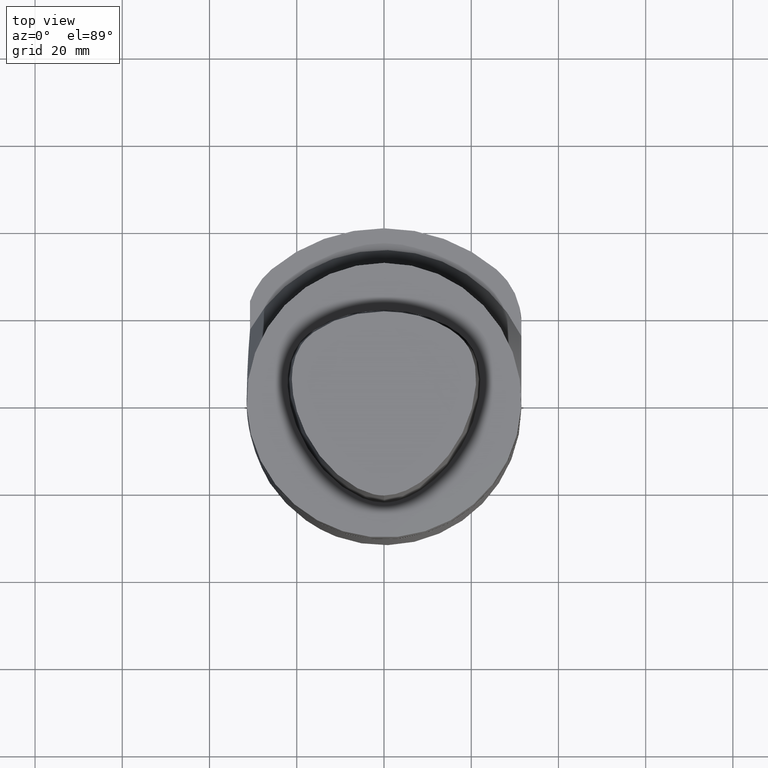
[diagram: clean part render]
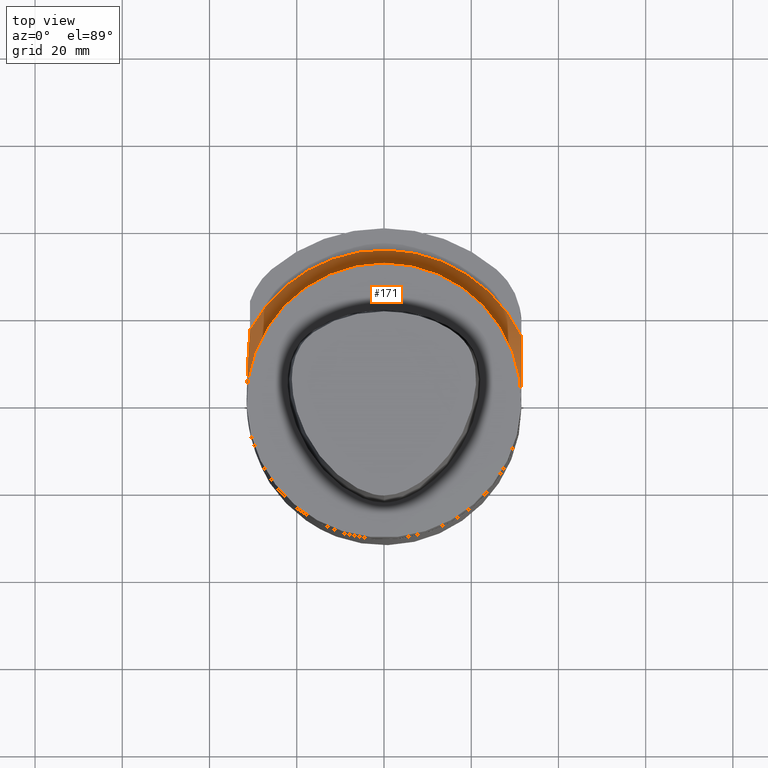
[diagram: same view with one face highlighted and labeled with its STEP entity id]
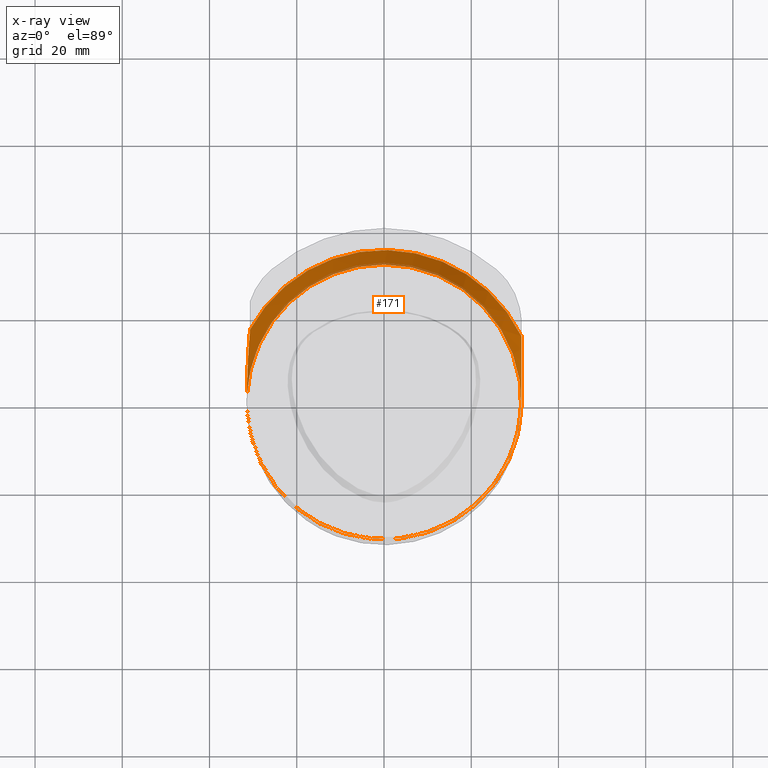
[diagram: x-ray of the same camera — body ghosted, the highlighted face saturated]
A machine part, top view. The second image highlights one B-rep face of the part: STEP entity #171.
The next image is the same camera in x-ray: the body ghosted, the highlighted face saturated — about 9% of this face is hidden behind the body in this view.
In plain terms, the highlighted conical surface has half-angle 22.606 deg.
Its self-contained STEP definition (entity closure, byte-faithful):
#102=EDGE_CURVE('240[2]',#282,#283,#284,.T.);
#144=EDGE_CURVE('240[2]',#283,#271,#346,.T.);
#156=EDGE_CURVE('240[2]',#314,#299,#360,.T.);
#171=ADVANCED_FACE('240[2]',(#381),#382,.T.);
#173=EDGE_CURVE('240[2]',#299,#377,#384,.T.);
#217=EDGE_CURVE('240[2]',#282,#377,#438,.T.);
#240=EDGE_CURVE('240[2]',#271,#314,#465,.T.);
#271=VERTEX_POINT('',#489);
#282=VERTEX_POINT('',#505);
#283=VERTEX_POINT('',#506);
#284=(B_SPLINE_CURVE(2,(#508,#509,#510),.UNSPECIFIED.,.F.,.F.)B_SPLINE_CURVE_WITH_KNOTS((3,3),(2.66387468098414E-012,0.190684739631489),.UNSPECIFIED.)RATIONAL_B_SPLINE_CURVE((1.0,1.00019183330553,1.0003794940894))BOUNDED_CURVE()REPRESENTATION_ITEM('')GEOMETRIC_REPRESENTATION_ITEM()CURVE());
#299=VERTEX_POINT('',#538);
#314=VERTEX_POINT('',#592);
#346=CIRCLE('',#651,31.5000000000001);
#360=CIRCLE('',#671,35.0000000000054);
#377=VERTEX_POINT('',#695);
#381=FACE_OUTER_BOUND('',#700,.T.);
#382=CONICAL_SURFACE('',#701,33.2462500000026,0.394554409968623);
#384=(B_SPLINE_CURVE(2,(#705,#706,#707),.UNSPECIFIED.,.F.,.F.)B_SPLINE_CURVE_WITH_KNOTS((3,3),(0.000528695465248167,17.5336100710716),.UNSPECIFIED.)RATIONAL_B_SPLINE_CURVE((1.00000106372792,1.01763868971882,1.0))BOUNDED_CURVE()REPRESENTATION_ITEM('')GEOMETRIC_REPRESENTATION_ITEM()CURVE());
#438=CIRCLE('',#872,31.4924999999999);
#465=(B_SPLINE_CURVE(2,(#913,#914,#915),.UNSPECIFIED.,.F.,.F.)B_SPLINE_CURVE_WITH_KNOTS((3,3),(17.4185009161124,34.8370018322249),.UNSPECIFIED.)RATIONAL_B_SPLINE_CURVE((1.05555555555563,1.05555555555563,1.0))BOUNDED_CURVE()REPRESENTATION_ITEM('')GEOMETRIC_REPRESENTATION_ITEM()CURVE());
#489=CARTESIAN_POINT('',(31.5000000000003,-3.97903932025656E-013,-24.5943962641397));
#505=CARTESIAN_POINT('',(-31.4461826443,-1.70738201680771,-24.5763842561333));
#506=CARTESIAN_POINT('',(-31.4446067977921,-1.86727162787003,-24.5943962641391));
#508=CARTESIAN_POINT('',(-31.4461826443,-1.70738201680715,-24.5763842561333));
#509=CARTESIAN_POINT('',(-31.445429963829,-1.7873193017907,-24.5849874332835));
#510=CARTESIAN_POINT('',(-31.4446067977921,-1.86727162787002,-24.5943962641392));
#538=CARTESIAN_POINT('',(-30.7092117608135,16.7911974864777,-32.9999999999964));
#592=CARTESIAN_POINT('',(31.5000000000005,15.2561463024038,-32.9999999999964));
#651=AXIS2_PLACEMENT_3D('',#1097,#1098,#1099);
#671=AXIS2_PLACEMENT_3D('',#1124,#1125,#1126);
#695=CARTESIAN_POINT('',(-31.4461826443,1.70738201680771,-24.5763842561333));
#700=EDGE_LOOP('',(#1144,#1145,#1146,#1147,#1148,#1149));
#701=AXIS2_PLACEMENT_3D('',#1150,#1151,#1152);
#705=CARTESIAN_POINT('',(-30.7092117608135,16.7911974864776,-32.9999999999965));
#706=CARTESIAN_POINT('',(-31.3781617006837,8.93144290927152,-25.3538671993512));
#707=CARTESIAN_POINT('',(-31.4461826443,1.70738201680715,-24.5763842561333));
#872=AXIS2_PLACEMENT_3D('',#1230,#1231,#1232);
#913=CARTESIAN_POINT('',(31.5000000000003,-3.9252811527481E-013,-24.5943962641397));
#914=CARTESIAN_POINT('',(31.5000000000004,7.22659561692732,-24.5943962641397));
#915=CARTESIAN_POINT('',(31.5000000000005,15.2561463024037,-32.9999999999964));
#1097=CARTESIAN_POINT('',(-1.50597243309197E-015,2.8421709430404E-014,-24.5943962641391));
#1098=DIRECTION('',(6.12323399573677E-017,1.22464679914735E-016,1.0));
#1099=DIRECTION('',(1.0,-2.44929359829471E-016,-6.12323399573677E-017));
#1124=CARTESIAN_POINT('',(-2.02066721859292E-015,0.0,-32.9999999999964));
#1125=DIRECTION('',(6.12323399573677E-017,1.22464679914735E-016,1.0));
#1126=DIRECTION('',(1.22464679914735E-016,1.0,-1.22464679914735E-016));
#1144=ORIENTED_EDGE('',*,*,#102,.T.);
#1145=ORIENTED_EDGE('',*,*,#144,.T.);
#1146=ORIENTED_EDGE('',*,*,#240,.T.);
#1147=ORIENTED_EDGE('',*,*,#156,.T.);
#1148=ORIENTED_EDGE('',*,*,#173,.T.);
#1149=ORIENTED_EDGE('',*,*,#217,.F.);
#1150=CARTESIAN_POINT('',(-1.76276836714368E-015,0.0,-28.7881921280649));
#1151=DIRECTION('',(-6.12323399573677E-017,-1.22464679914735E-016,-1.0));
#1152=DIRECTION('',(1.22464679914735E-016,1.0,-1.22464679914735E-016));
#1230=CARTESIAN_POINT('',(-1.50486951569445E-015,0.0,-24.5763842561333));
#1231=DIRECTION('',(6.12323399573677E-017,1.22464679914735E-016,1.0));
#1232=DIRECTION('',(1.22464679914735E-016,1.0,-1.22464679914735E-016));